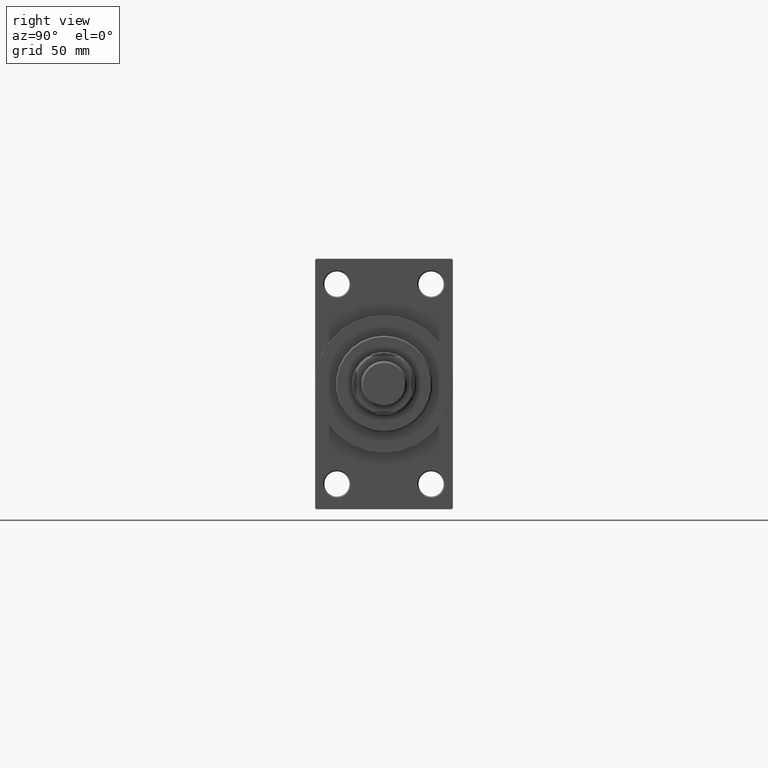
[diagram: clean part render]
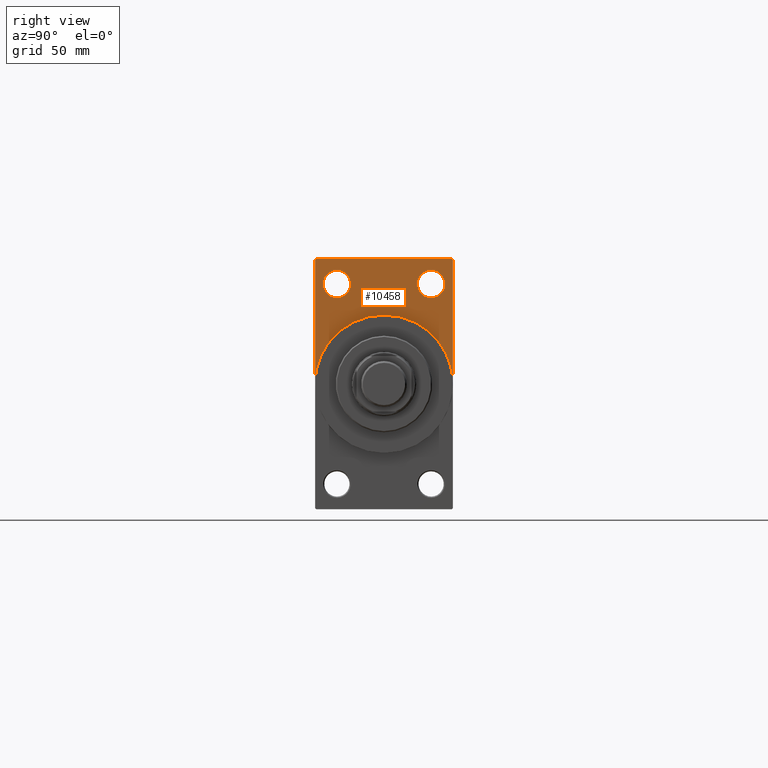
[diagram: same view with one face highlighted and labeled with its STEP entity id]
A machine part, right view. The second image highlights one B-rep face of the part: STEP entity #10458.
In plain terms, the highlighted planar face has unit normal (-1, 0, 0).
Its self-contained STEP definition (entity closure, byte-faithful):
#59 = VECTOR ( 'NONE', #37026, 1000.000000000000000 ) ;
#422 = CARTESIAN_POINT ( 'NONE',  ( 218.0000000000000284, 20.50000000000000000, 49.50000000000011369 ) ) ;
#1311 = LINE ( 'NONE', #12163, #59 ) ;
#3011 = DIRECTION ( 'NONE',  ( -0.000000000000000000, -0.7071067811865450192, -0.7071067811865500152 ) ) ;
#3184 = EDGE_CURVE ( 'NONE', #6460, #36562, #24587, .T. ) ;
#3285 = LINE ( 'NONE', #33170, #40071 ) ;
#3433 = CARTESIAN_POINT ( 'NONE',  ( 218.0000000000000284, 20.50000000000000000, 43.50000000000000000 ) ) ;
#4146 = CARTESIAN_POINT ( 'NONE',  ( 218.0000000000000284, -30.00000000000000000, 54.50000000000000000 ) ) ;
#4400 = DIRECTION ( 'NONE',  ( -0.000000000000000000, 0.000000000000000000, 1.000000000000000000 ) ) ;
#4606 = AXIS2_PLACEMENT_3D ( 'NONE', #31092, #42423, #24091 ) ;
#5019 = DIRECTION ( 'NONE',  ( 0.000000000000000000, 0.000000000000000000, -1.000000000000000000 ) ) ;
#5518 = AXIS2_PLACEMENT_3D ( 'NONE', #39971, #40432, #10783 ) ;
#6460 = VERTEX_POINT ( 'NONE', #27770 ) ;
#6726 = ORIENTED_EDGE ( 'NONE', *, *, #38699, .F. ) ;
#7263 = EDGE_CURVE ( 'NONE', #36669, #20014, #29728, .T. ) ;
#7518 = DIRECTION ( 'NONE',  ( -1.000000000000000000, 0.000000000000000000, -0.000000000000000000 ) ) ;
#7521 = LINE ( 'NONE', #4146, #19640 ) ;
#8007 = PLANE ( 'NONE',  #45522 ) ;
#8133 = EDGE_CURVE ( 'NONE', #20014, #25535, #3285, .T. ) ;
#8362 = CARTESIAN_POINT ( 'NONE',  ( 218.0000000000000284, 29.99999999999999645, 53.99999999999996447 ) ) ;
#8726 = CARTESIAN_POINT ( 'NONE',  ( 218.0000000000000284, 20.50000000000000000, 43.50000000000000000 ) ) ;
#9158 = ORIENTED_EDGE ( 'NONE', *, *, #25870, .F. ) ;
#9545 = CARTESIAN_POINT ( 'NONE',  ( 218.0000000000000284, 29.49999999999996803, 54.49999999999999289 ) ) ;
#10458 = ADVANCED_FACE ( 'NONE', ( #44196, #40564, #19088 ), #8007, .F. ) ;
#10759 = EDGE_LOOP ( 'NONE', ( #43928, #34243, #18944, #33417, #9158, #6726, #37885 ) ) ;
#10783 = DIRECTION ( 'NONE',  ( 0.000000000000000000, 0.000000000000000000, -1.000000000000000000 ) ) ;
#11123 = DIRECTION ( 'NONE',  ( 0.000000000000000000, 0.000000000000000000, -1.000000000000000000 ) ) ;
#12163 = CARTESIAN_POINT ( 'NONE',  ( 218.0000000000000284, 29.99999999999999645, 54.49999999999999289 ) ) ;
#12715 = CARTESIAN_POINT ( 'NONE',  ( 218.0000000000000284, 0.000000000000000000, 0.000000000000000000 ) ) ;
#12878 = CIRCLE ( 'NONE', #20546, 30.00000000000000000 ) ;
#13310 = VERTEX_POINT ( 'NONE', #13620 ) ;
#13620 = CARTESIAN_POINT ( 'NONE',  ( 218.0000000000000284, 30.00000000000000000, 0.000000000000000000 ) ) ;
#13802 = CIRCLE ( 'NONE', #26129, 6.000000000000116351 ) ;
#15464 = CARTESIAN_POINT ( 'NONE',  ( 218.0000000000000284, -20.50000000000000000, 43.50000000000000000 ) ) ;
#15480 = DIRECTION ( 'NONE',  ( -1.000000000000000000, 0.000000000000000000, -0.000000000000000000 ) ) ;
#15493 = DIRECTION ( 'NONE',  ( 0.000000000000000000, -0.7071067811865474617, 0.7071067811865474617 ) ) ;
#16168 = CARTESIAN_POINT ( 'NONE',  ( 218.0000000000000284, -30.00000000000000000, 0.000000000000000000 ) ) ;
#16936 = ORIENTED_EDGE ( 'NONE', *, *, #41823, .T. ) ;
#17697 = ORIENTED_EDGE ( 'NONE', *, *, #43754, .T. ) ;
#18944 = ORIENTED_EDGE ( 'NONE', *, *, #45820, .T. ) ;
#19088 = FACE_OUTER_BOUND ( 'NONE', #10759, .T. ) ;
#19640 = VECTOR ( 'NONE', #11123, 1000.000000000000000 ) ;
#20014 = VERTEX_POINT ( 'NONE', #9545 ) ;
#20546 = AXIS2_PLACEMENT_3D ( 'NONE', #12715, #27204, #5019 ) ;
#21746 = CIRCLE ( 'NONE', #30982, 6.000000000000116351 ) ;
#21959 = CARTESIAN_POINT ( 'NONE',  ( 218.0000000000000284, 0.000000000000000000, 30.00000000000000000 ) ) ;
#22191 = VERTEX_POINT ( 'NONE', #422 ) ;
#22210 = DIRECTION ( 'NONE',  ( 0.000000000000000000, 0.000000000000000000, 1.000000000000000000 ) ) ;
#22820 = CARTESIAN_POINT ( 'NONE',  ( 218.0000000000000284, -20.50000000000000000, 49.50000000000011369 ) ) ;
#24091 = DIRECTION ( 'NONE',  ( 0.000000000000000000, 0.000000000000000000, 1.000000000000000000 ) ) ;
#24231 = CIRCLE ( 'NONE', #39639, 6.000000000000116351 ) ;
#24587 = CIRCLE ( 'NONE', #4606, 6.000000000000116351 ) ;
#25069 = EDGE_LOOP ( 'NONE', ( #47332, #38353 ) ) ;
#25079 = VERTEX_POINT ( 'NONE', #39920 ) ;
#25535 = VERTEX_POINT ( 'NONE', #31113 ) ;
#25870 = EDGE_CURVE ( 'NONE', #13310, #29334, #12878, .T. ) ;
#26129 = AXIS2_PLACEMENT_3D ( 'NONE', #15464, #41505, #34267 ) ;
#26426 = VERTEX_POINT ( 'NONE', #16168 ) ;
#27204 = DIRECTION ( 'NONE',  ( 1.000000000000000000, 0.000000000000000000, 0.000000000000000000 ) ) ;
#27770 = CARTESIAN_POINT ( 'NONE',  ( 218.0000000000000284, -20.50000000000000000, 37.49999999999987921 ) ) ;
#27775 = EDGE_LOOP ( 'NONE', ( #17697, #16936 ) ) ;
#28100 = VECTOR ( 'NONE', #3011, 1000.000000000000000 ) ;
#29290 = LINE ( 'NONE', #36524, #28100 ) ;
#29334 = VERTEX_POINT ( 'NONE', #21959 ) ;
#29728 = LINE ( 'NONE', #44442, #31549 ) ;
#30982 = AXIS2_PLACEMENT_3D ( 'NONE', #8726, #15480, #41521 ) ;
#31092 = CARTESIAN_POINT ( 'NONE',  ( 218.0000000000000284, -20.50000000000000000, 43.50000000000000000 ) ) ;
#31113 = CARTESIAN_POINT ( 'NONE',  ( 218.0000000000000284, -29.50000000000002842, 54.50000000000000000 ) ) ;
#31236 = EDGE_CURVE ( 'NONE', #36562, #6460, #13802, .T. ) ;
#31549 = VECTOR ( 'NONE', #15493, 1000.000000000000114 ) ;
#33170 = CARTESIAN_POINT ( 'NONE',  ( 218.0000000000000284, 29.99999999999999645, 54.49999999999999289 ) ) ;
#33417 = ORIENTED_EDGE ( 'NONE', *, *, #36410, .F. ) ;
#34243 = ORIENTED_EDGE ( 'NONE', *, *, #45479, .T. ) ;
#34267 = DIRECTION ( 'NONE',  ( 0.000000000000000000, 0.000000000000000000, 1.000000000000000000 ) ) ;
#35394 = VERTEX_POINT ( 'NONE', #47366 ) ;
#36410 = EDGE_CURVE ( 'NONE', #29334, #26426, #43248, .T. ) ;
#36524 = CARTESIAN_POINT ( 'NONE',  ( 218.0000000000000284, -30.00000000000000000, 54.00000000000002842 ) ) ;
#36562 = VERTEX_POINT ( 'NONE', #22820 ) ;
#36669 = VERTEX_POINT ( 'NONE', #8362 ) ;
#37026 = DIRECTION ( 'NONE',  ( 0.000000000000000000, 0.000000000000000000, -1.000000000000000000 ) ) ;
#37885 = ORIENTED_EDGE ( 'NONE', *, *, #7263, .T. ) ;
#38353 = ORIENTED_EDGE ( 'NONE', *, *, #31236, .T. ) ;
#38699 = EDGE_CURVE ( 'NONE', #36669, #13310, #1311, .T. ) ;
#39639 = AXIS2_PLACEMENT_3D ( 'NONE', #3433, #7518, #22210 ) ;
#39920 = CARTESIAN_POINT ( 'NONE',  ( 218.0000000000000284, 20.50000000000000000, 37.49999999999987921 ) ) ;
#39971 = CARTESIAN_POINT ( 'NONE',  ( 218.0000000000000284, 0.000000000000000000, 0.000000000000000000 ) ) ;
#40071 = VECTOR ( 'NONE', #43799, 1000.000000000000000 ) ;
#40432 = DIRECTION ( 'NONE',  ( 1.000000000000000000, 0.000000000000000000, 0.000000000000000000 ) ) ;
#40564 = FACE_BOUND ( 'NONE', #27775, .T. ) ;
#40806 = CARTESIAN_POINT ( 'NONE',  ( 218.0000000000000284, 0.000000000000000000, 0.000000000000000000 ) ) ;
#41505 = DIRECTION ( 'NONE',  ( -1.000000000000000000, 0.000000000000000000, -0.000000000000000000 ) ) ;
#41521 = DIRECTION ( 'NONE',  ( 0.000000000000000000, 0.000000000000000000, 1.000000000000000000 ) ) ;
#41823 = EDGE_CURVE ( 'NONE', #22191, #25079, #21746, .T. ) ;
#42423 = DIRECTION ( 'NONE',  ( -1.000000000000000000, 0.000000000000000000, -0.000000000000000000 ) ) ;
#43248 = CIRCLE ( 'NONE', #5518, 30.00000000000000000 ) ;
#43754 = EDGE_CURVE ( 'NONE', #25079, #22191, #24231, .T. ) ;
#43799 = DIRECTION ( 'NONE',  ( 0.000000000000000000, -1.000000000000000000, 1.156482317317871478E-16 ) ) ;
#43928 = ORIENTED_EDGE ( 'NONE', *, *, #8133, .T. ) ;
#44196 = FACE_BOUND ( 'NONE', #25069, .T. ) ;
#44442 = CARTESIAN_POINT ( 'NONE',  ( 218.0000000000000284, 29.49999999999996803, 54.49999999999999289 ) ) ;
#45479 = EDGE_CURVE ( 'NONE', #25535, #35394, #29290, .T. ) ;
#45522 = AXIS2_PLACEMENT_3D ( 'NONE', #40806, #47590, #4400 ) ;
#45820 = EDGE_CURVE ( 'NONE', #35394, #26426, #7521, .T. ) ;
#47332 = ORIENTED_EDGE ( 'NONE', *, *, #3184, .T. ) ;
#47366 = CARTESIAN_POINT ( 'NONE',  ( 218.0000000000000284, -30.00000000000000000, 54.00000000000002842 ) ) ;
#47590 = DIRECTION ( 'NONE',  ( -1.000000000000000000, 0.000000000000000000, -0.000000000000000000 ) ) ;